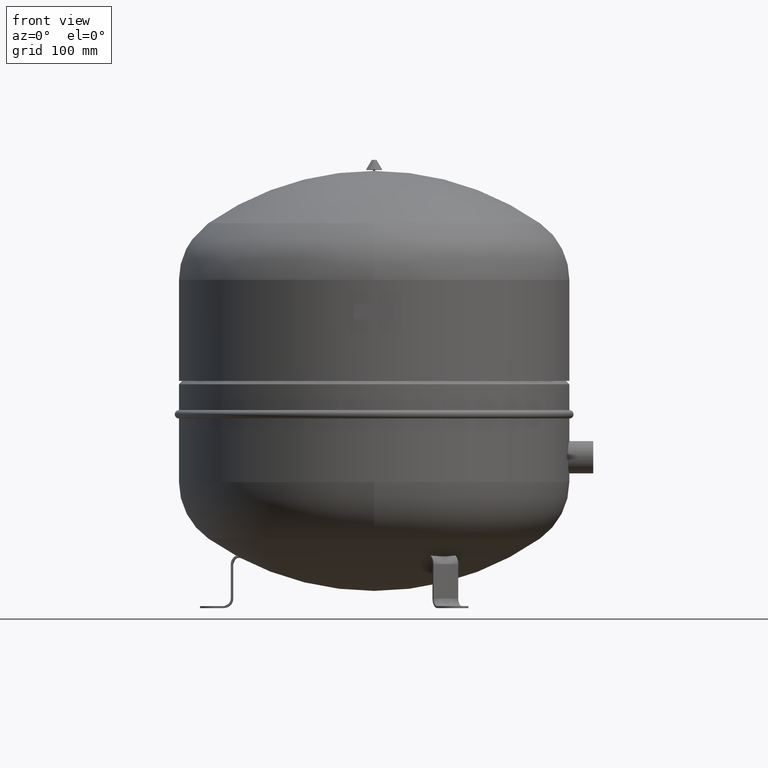
[diagram: clean part render]
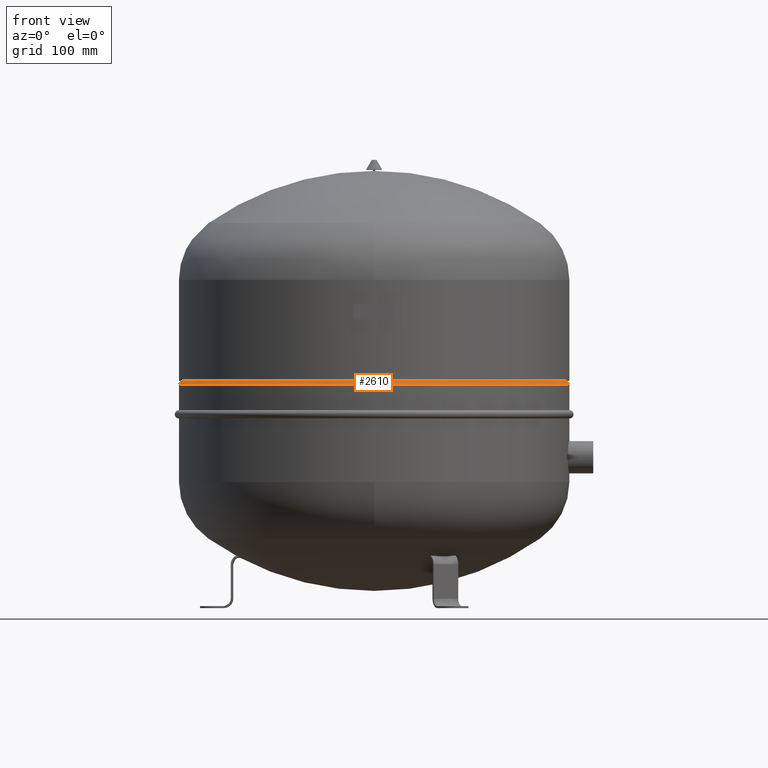
[diagram: same view with one face highlighted and labeled with its STEP entity id]
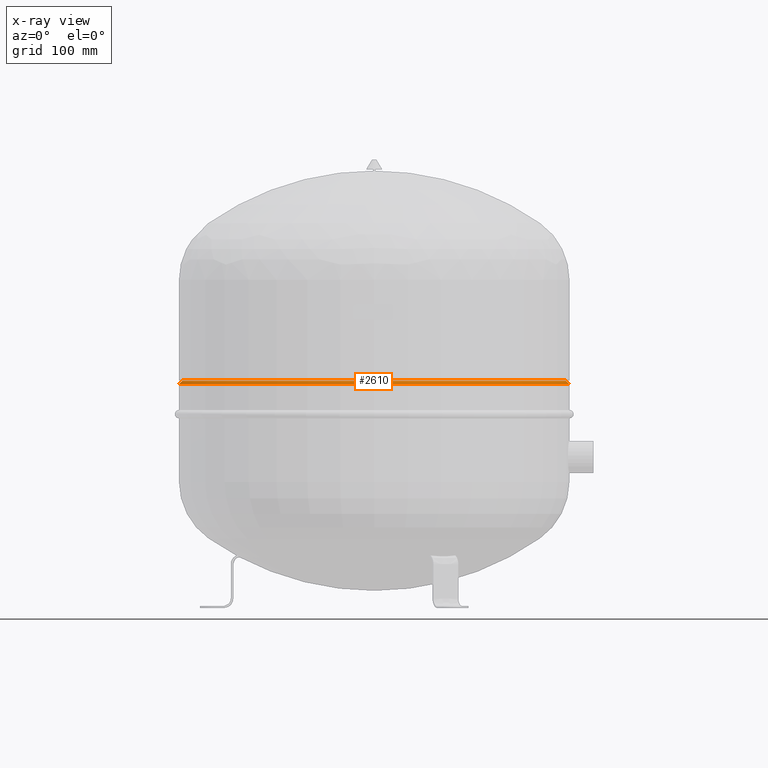
[diagram: x-ray of the same camera — body ghosted, the highlighted face saturated]
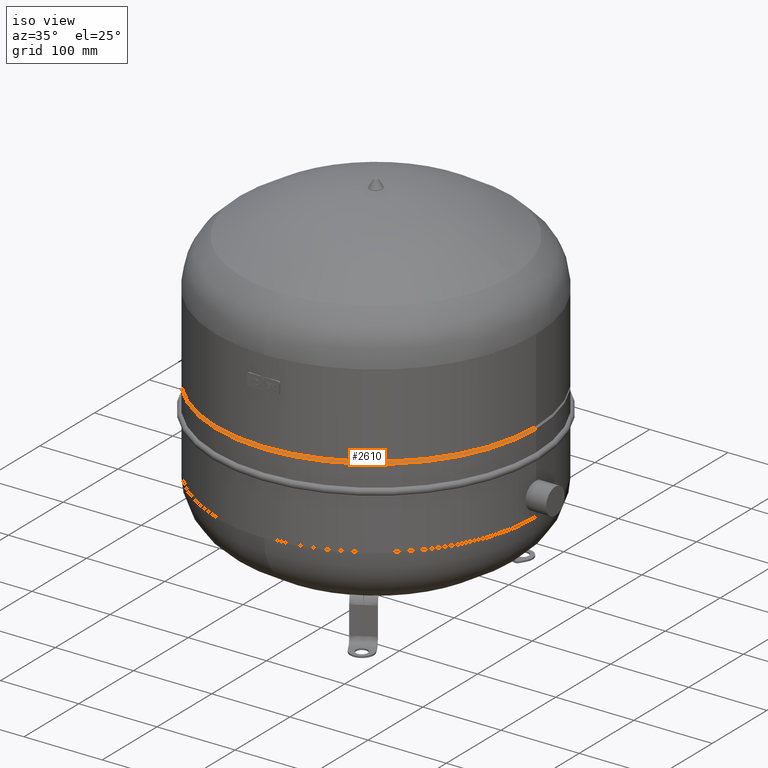
[diagram: same view with one face highlighted and labeled with its STEP entity id]
A machine part, front view. The second image highlights one B-rep face of the part: STEP entity #2610.
The next image is the same camera in x-ray: the body ghosted, the highlighted face saturated — about 0% of this face is hidden behind the body in this view.
A second angle (iso view) of the same face is appended — the face is thin or edge-on in the first view.
In plain terms, the highlighted conical surface has half-angle 45 deg.
Its self-contained STEP definition (entity closure, byte-faithful):
#2569=CARTESIAN_POINT('',(-2.781327E-016,0.0,236.25000000000011));
#2570=DIRECTION('',(-1.589330E-016,0.0,-1.0));
#2571=DIRECTION('',(1.0,0.0,0.0));
#2572=AXIS2_PLACEMENT_3D('',#2569,#2570,#2571);
#2573=CONICAL_SURFACE('',#2572,202.75,45.000000000000398);
#2574=CARTESIAN_POINT('',(200.99999999999997,0.0,238.00000000000006));
#2575=VERTEX_POINT('',#2574);
#2576=CARTESIAN_POINT('',(204.50000000000003,0.0,234.50000000000006));
#2577=VERTEX_POINT('',#2576);
#2578=CARTESIAN_POINT('',(201.0,0.0,238.00000000000009));
#2579=DIRECTION('',(0.707106781186553,0.0,-0.707106781186542));
#2580=VECTOR('',#2579,4.949747468305873);
#2581=LINE('',#2578,#2580);
#2582=EDGE_CURVE('',#2575,#2577,#2581,.T.);
#2583=ORIENTED_EDGE('',*,*,#2582,.F.);
#2584=CARTESIAN_POINT('',(-200.99999999999997,-2.461459E-014,238.00000000000011));
#2585=VERTEX_POINT('',#2584);
#2586=CARTESIAN_POINT('',(1.380507E-029,0.0,238.00000000000009));
#2587=DIRECTION('',(0.0,0.0,1.0));
#2588=DIRECTION('',(1.0,0.0,0.0));
#2589=AXIS2_PLACEMENT_3D('',#2586,#2587,#2588);
#2590=CIRCLE('',#2589,200.99999999999997);
#2591=EDGE_CURVE('',#2585,#2575,#2590,.T.);
#2592=ORIENTED_EDGE('',*,*,#2591,.F.);
#2593=CARTESIAN_POINT('',(-204.5,-2.504320E-014,234.50000000000011));
#2594=VERTEX_POINT('',#2593);
#2595=CARTESIAN_POINT('',(-200.99999999999997,-2.461459E-014,238.00000000000011));
#2596=DIRECTION('',(-0.70710678118655,-8.659275E-017,-0.707106781186545));
#2597=VECTOR('',#2596,4.949747468305853);
#2598=LINE('',#2595,#2597);
#2599=EDGE_CURVE('',#2585,#2594,#2598,.T.);
#2600=ORIENTED_EDGE('',*,*,#2599,.T.);
#2601=CARTESIAN_POINT('',(-5.562655E-016,0.0,234.50000000000009));
#2602=DIRECTION('',(0.0,0.0,1.0));
#2603=DIRECTION('',(1.0,0.0,0.0));
#2604=AXIS2_PLACEMENT_3D('',#2601,#2602,#2603);
#2605=CIRCLE('',#2604,204.50000000000003);
#2606=EDGE_CURVE('',#2594,#2577,#2605,.T.);
#2607=ORIENTED_EDGE('',*,*,#2606,.T.);
#2608=EDGE_LOOP('',(#2583,#2592,#2600,#2607));
#2609=FACE_OUTER_BOUND('',#2608,.T.);
#2610=ADVANCED_FACE('',(#2609),#2573,.T.);